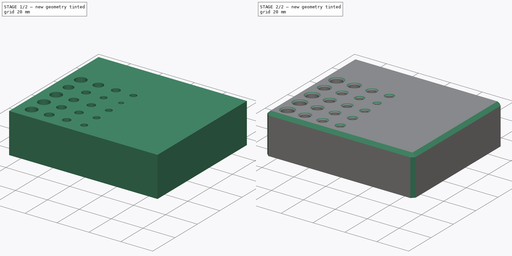
[diagram: build sequence overview — one tinted view per stage of 2, left to right]
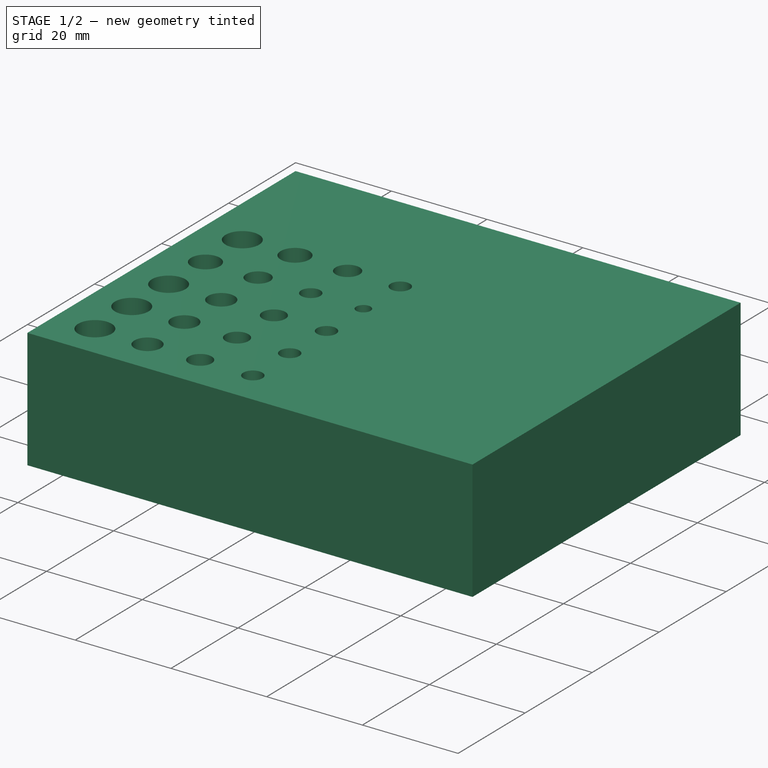
[diagram: stage 1 of 2 — iso view after this stage's code; geometry added in this stage tinted green]
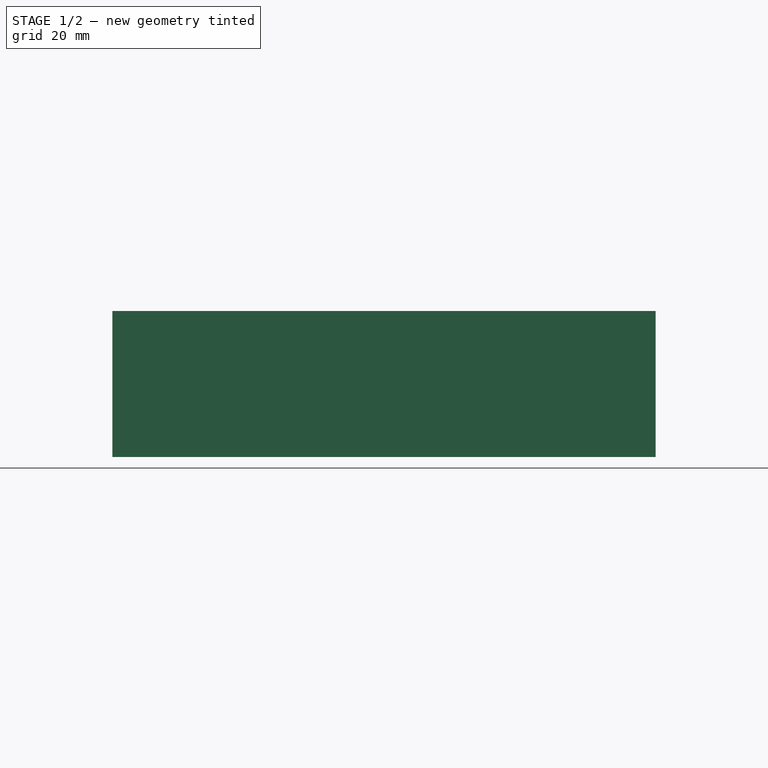
[diagram: stage 1 of 2 — front view after this stage's code; geometry added in this stage tinted green]
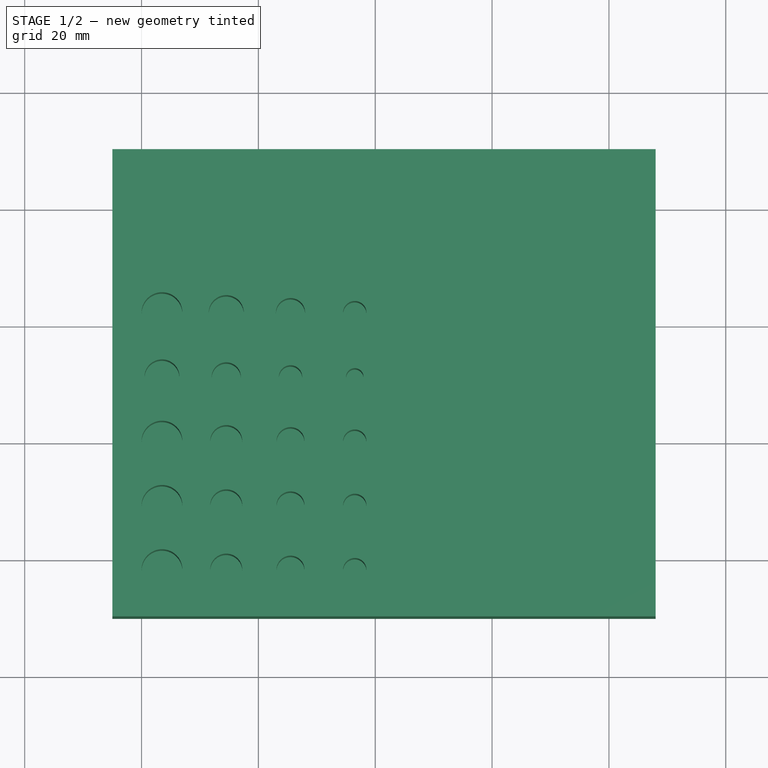
[diagram: stage 1 of 2 — top view after this stage's code; geometry added in this stage tinted green]
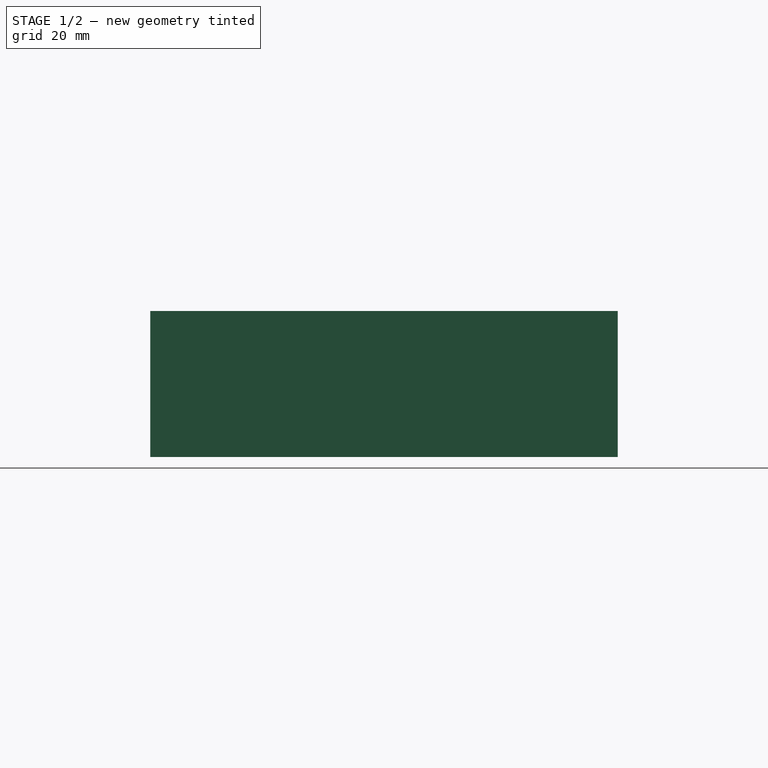
[diagram: stage 1 of 2 — right view after this stage's code; geometry added in this stage tinted green]
FCSTD DOCUMENT  (FreeCAD 0.19R)
Label: TapMatrix
License: All rights reserved
LicenseURL: http://en.wikipedia.org/wiki/All_rights_reserved
objects: Part::Part2DObjectPython×9, Sketcher::SketchObject×2, PartDesign::Chamfer×2, PartDesign::Pad×1, PartDesign::Pocket×1, PartDesign::Body×1
note: 20 computed .brp shape members not serialized (recipe doc carries the construction recipe); baked Part::Feature solids carry a one-line shape summary decoded from their .brp

FEATURE [Sketcher::SketchObject] Sketch
  FullyConstrained = true
  MapMode = 5
  Support = -> [XY_Plane]
  sketch-geometry (4):
    g0: LineSegment StartX=-25 StartY=50 StartZ=0 EndX=68 EndY=50 EndZ=0
    g1: LineSegment StartX=68 StartY=50 StartZ=0 EndX=68 EndY=-30 EndZ=0
    g2: LineSegment StartX=68 StartY=-30 StartZ=0 EndX=-25 EndY=-30 EndZ=0
    g3: LineSegment StartX=-25 StartY=-30 StartZ=0 EndX=-25 EndY=50 EndZ=0
  constraints (12):
    c: Coincident(g0,g1)
    c: Coincident(g1,g2)
    c: Coincident(g2,g3)
    c: Coincident(g3,g0)
    c: Horizontal(g2)
    c: Vertical(g3)
    c: DistanceY(g1) = -30
    c: Vertical(g1)
    c: DistanceX(g0) = -25
    c: DistanceX(g0) = 68
    c: Horizontal(g0)
    c: Distance(g3) = 80
FEATURE [PartDesign::Pad] Pad
  Direction = (1,1,1)
  Length = 25
  Length2 = 100
  Profile = -> Sketch
  Type = 0
FEATURE [Sketcher::SketchObject] Sketch001
  FullyConstrained = false
  MapMode = 5
  Placement = pos=(0,0,25) rot=(0,0,1;0rad)
  Support = -> [Pad]
  sketch-geometry (24):
    g0: Circle CenterX=-16.5 CenterY=-22 CenterZ=0 NormalX=0 NormalY=0 NormalZ=1 AngleXU=0 Radius=3.5
    g1: Circle CenterX=-16.5 CenterY=-11 CenterZ=0 NormalX=0 NormalY=0 NormalZ=1 AngleXU=0 Radius=3.5
    g2: Circle CenterX=-16.5 CenterY=0 CenterZ=0 NormalX=0 NormalY=0 NormalZ=1 AngleXU=0 Radius=3.5
    g3: Circle CenterX=-16.5 CenterY=11 CenterZ=0 NormalX=0 NormalY=0 NormalZ=1 AngleXU=0 Radius=3
    g4: LineSegment StartX=-16.5 StartY=-63.4866 StartZ=0 EndX=-16.5 EndY=84.1657 EndZ=0
    g5: LineSegment StartX=-5.5 StartY=-65.391 StartZ=0 EndX=-5.5 EndY=106.449 EndZ=0
    g6: LineSegment StartX=5.5 StartY=-45.9192 StartZ=0 EndX=5.5 EndY=108.004 EndZ=0
    g7: LineSegment StartX=16.5 StartY=-66.9686 StartZ=0 EndX=16.5 EndY=88.7656 EndZ=0
    g8: Circle CenterX=-5.5 CenterY=-22 CenterZ=0 NormalX=0 NormalY=0 NormalZ=1 AngleXU=0 Radius=2.75
    g9: Circle CenterX=-5.5 CenterY=-11 CenterZ=0 NormalX=0 NormalY=0 NormalZ=1 AngleXU=0 Radius=2.75
    g10: Circle CenterX=-5.5 CenterY=0 CenterZ=0 NormalX=0 NormalY=0 NormalZ=1 AngleXU=0 Radius=2.75
    g11: Circle CenterX=-5.5 CenterY=11 CenterZ=0 NormalX=0 NormalY=0 NormalZ=1 AngleXU=0 Radius=2.5
    g12: Circle CenterX=5.5 CenterY=-22 CenterZ=0 NormalX=0 NormalY=0 NormalZ=1 AngleXU=0 Radius=2.4
    g13: Circle CenterX=5.5 CenterY=-11 CenterZ=0 NormalX=0 NormalY=0 NormalZ=1 AngleXU=0 Radius=2.4
    g14: Circle CenterX=5.5 CenterY=0 CenterZ=0 NormalX=0 NormalY=0 NormalZ=1 AngleXU=0 Radius=2.4
    g15: Circle CenterX=5.5 CenterY=11 CenterZ=0 NormalX=0 NormalY=0 NormalZ=1 AngleXU=0 Radius=2
    g16: Circle CenterX=16.5 CenterY=-22 CenterZ=0 NormalX=0 NormalY=0 NormalZ=1 AngleXU=0 Radius=2
    g17: Circle CenterX=16.5 CenterY=-11 CenterZ=0 NormalX=0 NormalY=0 NormalZ=1 AngleXU=0 Radius=2
    g18: Circle CenterX=16.5 CenterY=0 CenterZ=0 NormalX=0 NormalY=0 NormalZ=1 AngleXU=0 Radius=2
    g19: Circle CenterX=16.5 CenterY=11 CenterZ=0 NormalX=0 NormalY=0 NormalZ=1 AngleXU=0 Radius=1.5
    g20: Circle CenterX=-16.5 CenterY=22 CenterZ=0 NormalX=0 NormalY=0 NormalZ=1 AngleXU=0 Radius=3.5
    g21: Circle CenterX=-5.5 CenterY=22 CenterZ=0 NormalX=0 NormalY=0 NormalZ=1 AngleXU=0 Radius=3
    g22: Circle CenterX=5.5 CenterY=22 CenterZ=0 NormalX=0 NormalY=0 NormalZ=1 AngleXU=0 Radius=2.5
    g23: Circle CenterX=16.5 CenterY=22 CenterZ=0 NormalX=0 NormalY=0 NormalZ=1 AngleXU=0 Radius=2
  constraints (67):
    c: PointOnObject(g3,g4)
    c: PointOnObject(g2,g4)
    c: PointOnObject(g1,g4)
    c: PointOnObject(g0,g4)
    c: PointOnObject(g16,g7)
    c: PointOnObject(g17,g7)
    c: PointOnObject(g18,g7)
    c: PointOnObject(g19,g7)
    c: PointOnObject(g12,g6)
    c: PointOnObject(g13,g6)
    c: PointOnObject(g14,g6)
    c: PointOnObject(g15,g6)
    c: PointOnObject(g8,g5)
    c: PointOnObject(g9,g5)
    c: PointOnObject(g10,g5)
    c: PointOnObject(g11,g5)
    c: PointOnObject(g20,g4)
    c: PointOnObject(g21,g5)
    c: PointOnObject(g22,g6)
    c: PointOnObject(g23,g7)
    c: Diameter(g20) = 7
    c: Diameter(g21) = 6
    c: Diameter(g22) = 5
    c: Diameter(g23) = 4
    c: Distance(g0,g1) = 11
    c: Distance(g1,g2) = 11
    c: Distance(g3,g2) = 11
    c: Distance(g20,g3) = 11
    c: Distance(g8,g9) = 11
    c: Distance(g9,g10) = 11
    c: Distance(g10,g11) = 11
    c: Distance(g11,g21) = 11
    c: Distance(g12,g13) = 11
    c: Distance(g13,g14) = 11
    c: Distance(g14,g15) = 11
    c: Distance(g15,g22) = 11
    c: Distance(g16,g17) = 11
    c: Distance(g17,g18) = 11
    c: Distance(g18,g19) = 11
    c: Distance(g19,g23) = 11
    c: Distance(g6,g5) = 11
    c: Distance(g5,g4) = 11
    c: Parallel(g7,g6)
    c: Parallel(g6,g5)
    c: Parallel(g5,g4)
    c: Vertical(g4)
    c: Distance(g7,g6) = 11
    c: PointOnObject(g2,g-1)
    c: PointOnObject(g10,g-1)
    c: PointOnObject(g18,g-1)
    c: Symmetric(g14,g10,g-1)
    c: Diameter(g3) = 6
    c: Diameter(g11) = 5
    c: Diameter(g15) = 4
    c: Diameter(g19) = 3
    c: Diameter(g18) = 4
    c: Equal(g18,g17)
    c: Equal(g18,g16)
    c: Diameter(g10) = 5.5
    c: Equal(g10,g9)
    c: Equal(g10,g8)
    c: Diameter(g14) = 4.8
    c: Equal(g14,g13)
    c: Equal(g14,g12)
    c: Diameter(g1) = 7
    c: Equal(g1,g2)
    c: Equal(g1,g0)
FEATURE [PartDesign::Pocket] Pocket
  BaseFeature = -> Pad
  Length = 15
  Length2 = 100
  Profile = -> Sketch001
  Type = 0
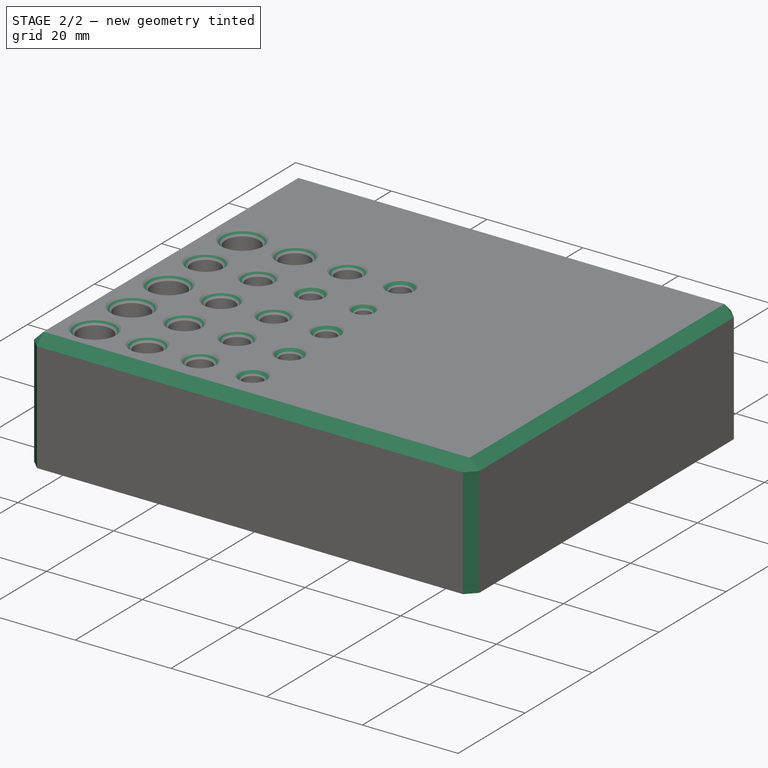
[diagram: stage 2 of 2 — iso view after this stage's code; geometry added in this stage tinted green]
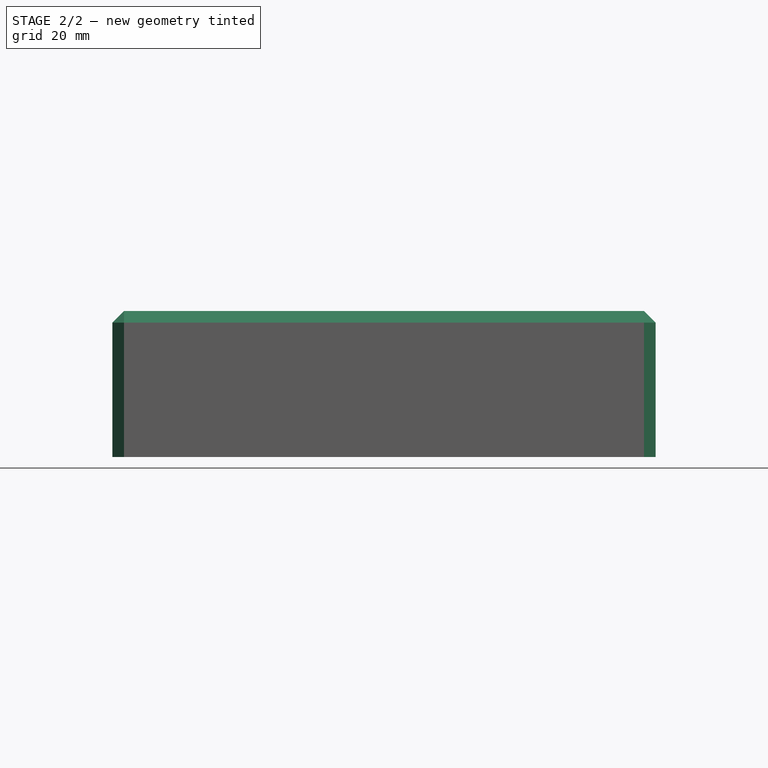
[diagram: stage 2 of 2 — front view after this stage's code; geometry added in this stage tinted green]
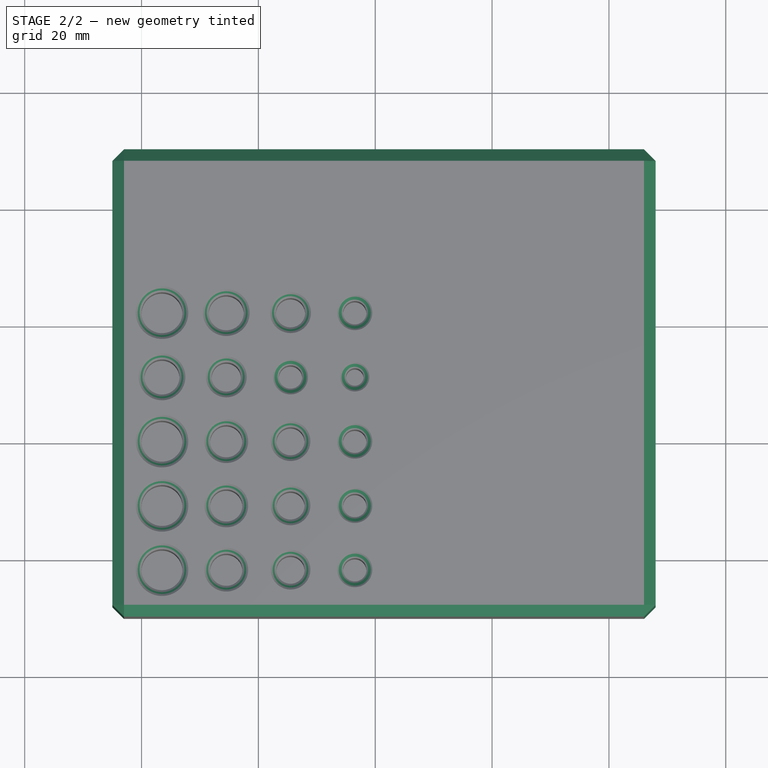
[diagram: stage 2 of 2 — top view after this stage's code; geometry added in this stage tinted green]
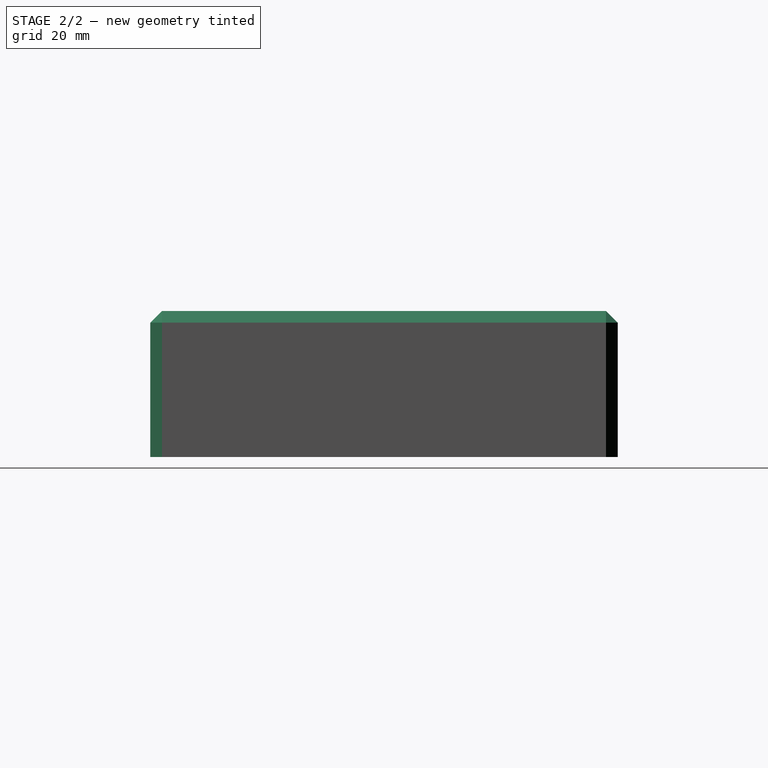
[diagram: stage 2 of 2 — right view after this stage's code; geometry added in this stage tinted green]
FEATURE [Part::Part2DObjectPython] ShapeString  # Draft 2D object (typed FeaturePython)
  FontFile = <path>
  Placement = pos=(-18.4998,43.2102,25) rot=(0,0,-1;1.54214rad)
  Size = 2.5
  String = 6mm
  Tracking = 0
FEATURE [Part::Part2DObjectPython] ShapeString001  # Draft 2D object (typed FeaturePython)
  FontFile = <path>
  Placement = pos=(-7.89049,43.1493,25) rot=(0,0,-1;1.54214rad)
  Size = 2.5
  String = 5mm
  Tracking = 0
FEATURE [Part::Part2DObjectPython] ShapeString002  # Draft 2D object (typed FeaturePython)
  FontFile = <path>
  Placement = pos=(3.2616,43.1819,25) rot=(0,0,-1;1.54214rad)
  Size = 2.5
  String = 4mm
  Tracking = 0
FEATURE [Part::Part2DObjectPython] ShapeString003  # Draft 2D object (typed FeaturePython)
  FontFile = <path>
  Placement = pos=(14.0778,43.223,25) rot=(0,0,-1;1.54214rad)
  Size = 2.5
  String = 3mm
  Tracking = 0
FEATURE [Part::Part2DObjectPython] ShapeString004  # Draft 2D object (typed FeaturePython)
  FontFile = <path>
  Placement = pos=(21.5449,19.8951,25) rot=(0,0,1;0rad)
  Size = 2.5
  String = Clear Drill
  Tracking = 0
FEATURE [Part::Part2DObjectPython] ShapeString005  # Draft 2D object (typed FeaturePython)
  FontFile = <path>
  Placement = pos=(21.6343,8.8,25) rot=(0,0,1;0rad)
  Size = 2.5
  String = Tap Drill
  Tracking = 0
FEATURE [Part::Part2DObjectPython] ShapeString006  # Draft 2D object (typed FeaturePython)
  FontFile = <path>
  Placement = pos=(21.8144,-1.95012,25) rot=(0,0,1;0rad)
  Size = 2.5
  String = Taper Tap
  Tracking = 0
FEATURE [Part::Part2DObjectPython] ShapeString007  # Draft 2D object (typed FeaturePython)
  FontFile = <path>
  Placement = pos=(22.9596,-13.1502,25) rot=(0,0,1;0rad)
  Size = 2.5
  String = Plug Tap
  Tracking = 0
FEATURE [Part::Part2DObjectPython] ShapeString008  # Draft 2D object (typed FeaturePython)
  FontFile = <path>
  Placement = pos=(22.872,-23.9597,25) rot=(0,0,1;0rad)
  Size = 2.5
  String = Bottom Tap
  Tracking = 0
FEATURE [PartDesign::Chamfer] Chamfer
  Angle = 45
  Base = -> Pocket [Edge8,Edge5,Edge7,Edge12,Edge10,Edge2,Edge4,Edge1]
  BaseFeature = -> Pocket
  ChamferType = 0
  FlipDirection = false
  Size = 2
  Size2 = 1
  SupportTransform = false
FEATURE [PartDesign::Chamfer] Chamfer001
  Angle = 45
  Base = -> Chamfer [Edge38,Edge37,Edge34,Edge33,Edge35,Edge41,Edge42,Edge45,Edge46,Edge44,Edge43,Edge36,Edge39,Edge47,Edge48,Edge51,Edge52,Edge50,Edge49,Edge40]
  BaseFeature = -> Chamfer
  ChamferType = 0
  FlipDirection = false
  Size = 1
  Size2 = 1
  SupportTransform = false
FEATURE [PartDesign::Body] Body
  Group = -> [Sketch,Pad,Sketch001,Pocket,ShapeString,ShapeString001,ShapeString002,ShapeString003,ShapeString004,ShapeString005,ShapeString006,ShapeString007,ShapeString008,Chamfer,Chamfer001]
  Origin = -> Origin
  Tip = -> Chamfer001
note: 9 file-system paths scrubbed to <path> (originals preserved in the JSON sidecar)
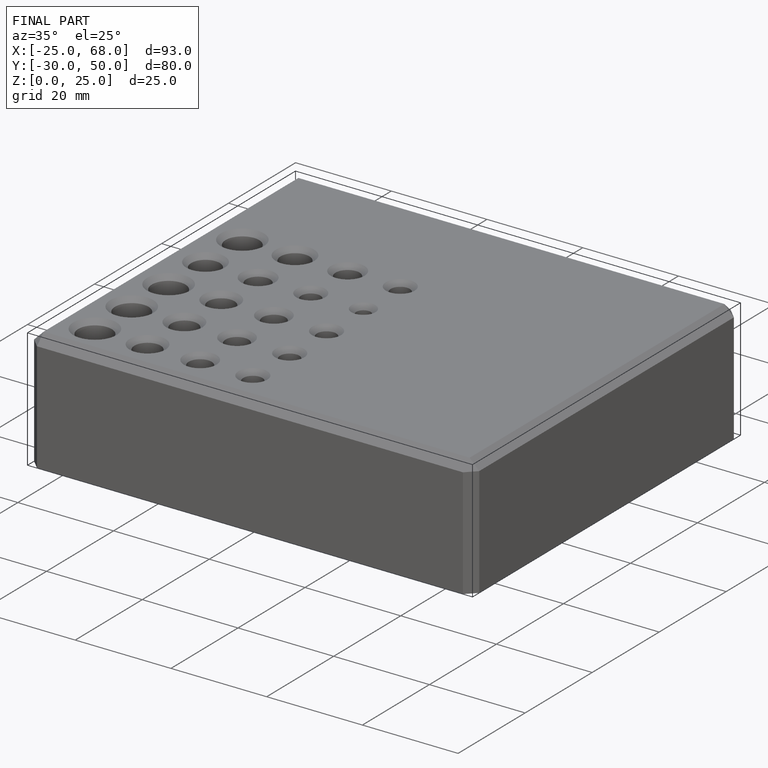
[diagram: finished part — iso view with bounding-box wireframe]
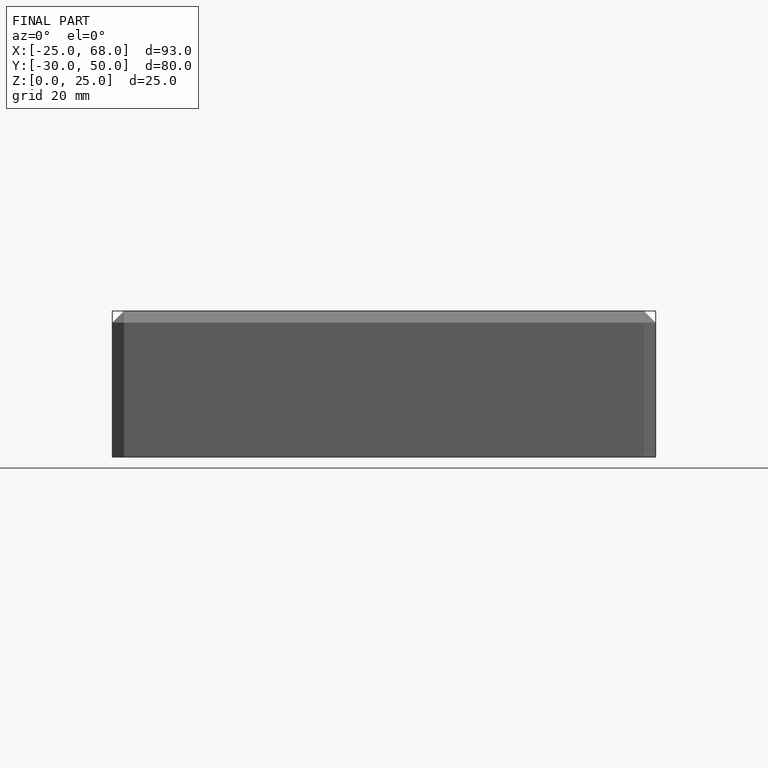
[diagram: finished part — front view with bounding-box wireframe]
